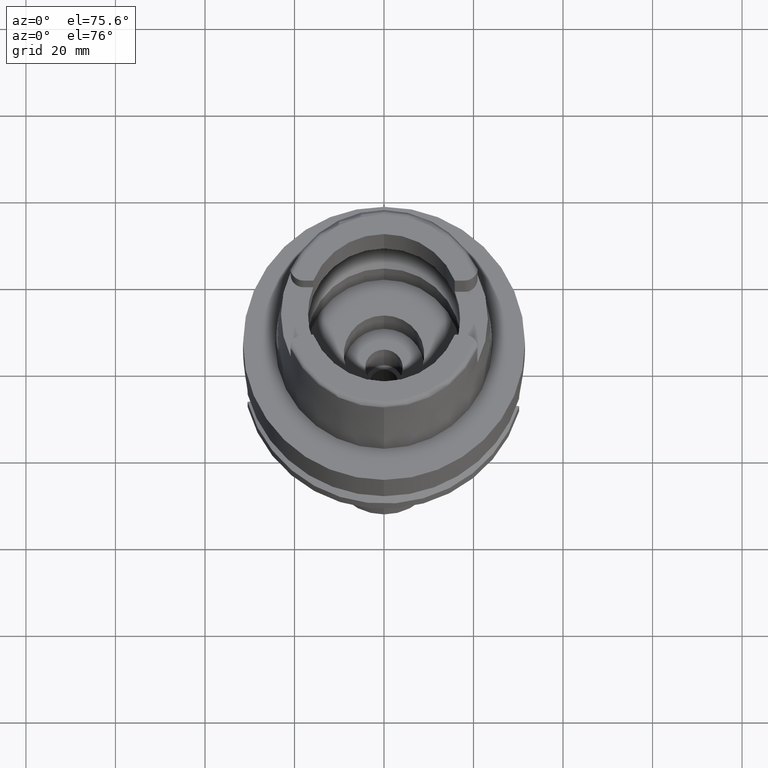
[diagram: clean part render]
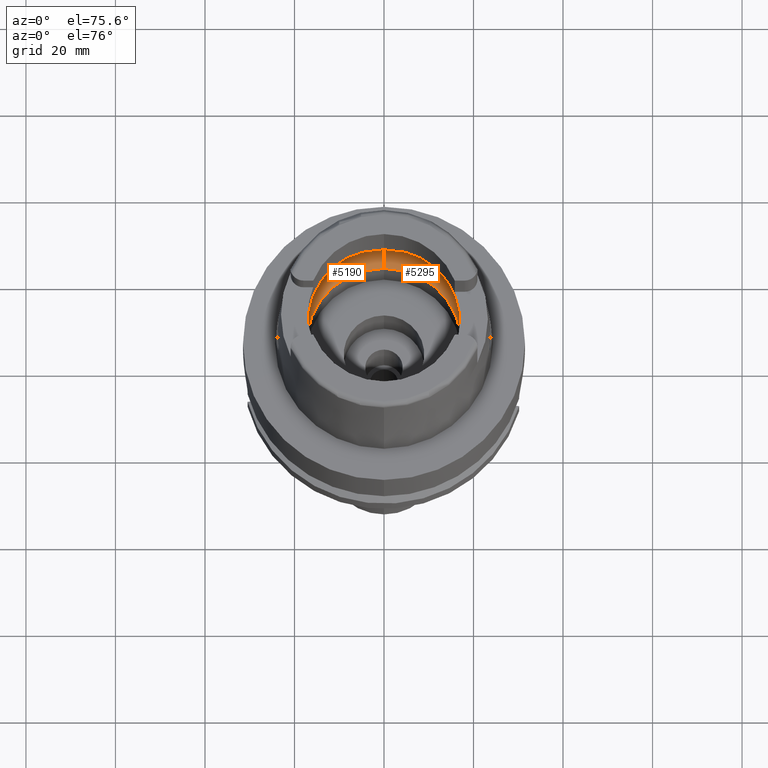
[diagram: same view with one multi-face feature highlighted, each face labeled with its STEP entity id]
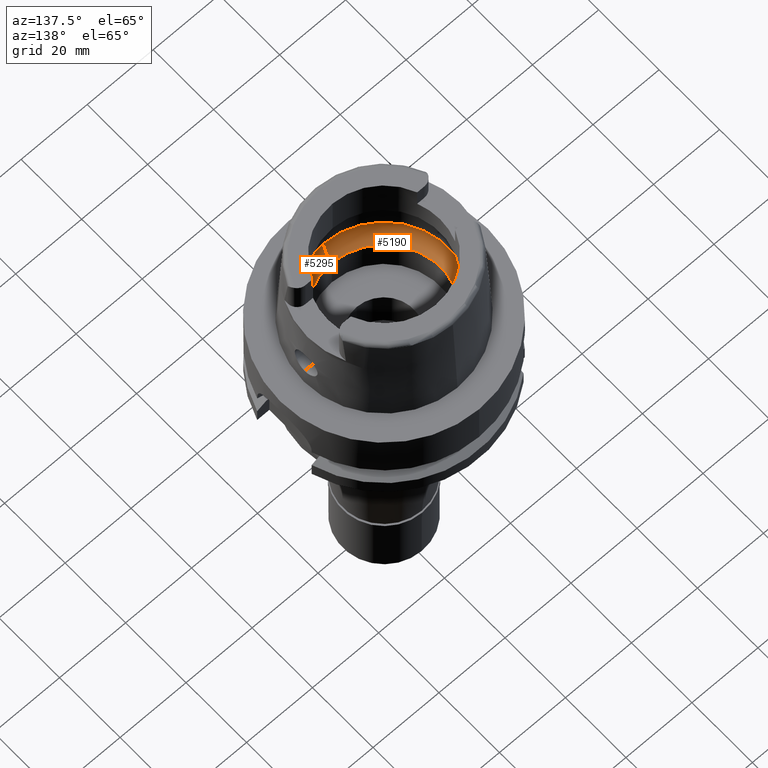
[diagram: same view with one multi-face feature highlighted, each face labeled with its STEP entity id]
A machine part, auxiliary view. The highlighted faces form ONE feature: a constant-radius fillet chain: 2 tangent blend faces with common blend radius 8 mm. The faces share edges in the B-rep.
A second angle (auxiliary view) of the same feature is appended — it is thin or edge-on in the first view.
Their STEP definitions:
[1] entity #5190 (Torus):
#51 = CARTESIAN_POINT ( 'NONE',  ( -19.90654447560747542, -1.770008974173177263, 5.691881888190377659 ) ) ;
#55 = CARTESIAN_POINT ( 'NONE',  ( -19.84575864665999845, -2.479085262491000030, 6.186348233825000875 ) ) ;
#291 = CIRCLE ( 'NONE', #2956, 20.00000000000000000 ) ;
#303 = EDGE_CURVE ( 'NONE', #380, #1386, #2528, .T. ) ;
#380 = VERTEX_POINT ( 'NONE', #2709 ) ;
#426 = CARTESIAN_POINT ( 'NONE',  ( -19.92591704426989452, 1.321751840890049490, 5.490650643677390974 ) ) ;
#444 = ORIENTED_EDGE ( 'NONE', *, *, #4138, .F. ) ;
#450 = DIRECTION ( 'NONE',  ( 0.0000000000000000000, 1.000000000000000000, 0.0000000000000000000 ) ) ;
#494 = CARTESIAN_POINT ( 'NONE',  ( -19.90056784349247820, -1.871074272730828048, 5.748194928871746434 ) ) ;
#545 = CARTESIAN_POINT ( 'NONE',  ( -19.92517785718085577, -1.343613127942956842, 5.498962406970089312 ) ) ;
#582 = CARTESIAN_POINT ( 'NONE',  ( -19.94501428475999560, -0.4960423020627297008, 5.249999999999995559 ) ) ;
#623 = AXIS2_PLACEMENT_3D ( 'NONE', #2353, #754, #726 ) ;
#720 = TOROIDAL_SURFACE ( 'NONE', #3993, 12.00000000000000000, 8.000000000000000000 ) ;
#726 = DIRECTION ( 'NONE',  ( 0.0000000000000000000, 0.6562500000000006661, -0.7545435292281016393 ) ) ;
#754 = DIRECTION ( 'NONE',  ( 1.000000000000000000, 0.0000000000000000000, 0.0000000000000000000 ) ) ;
#779 = EDGE_CURVE ( 'NONE', #4959, #1616, #1147, .T. ) ;
#869 = CARTESIAN_POINT ( 'NONE',  ( -19.90996073982917380, 1.795817278995830657, 5.670328124222732136 ) ) ;
#931 = EDGE_LOOP ( 'NONE', ( #4337, #3284, #2487, #2553, #444, #2005, #2562 ) ) ;
#1002 = CARTESIAN_POINT ( 'NONE',  ( -19.93856671042052398, -0.9459665778997381480, 5.348222674928019060 ) ) ;
#1056 = CARTESIAN_POINT ( 'NONE',  ( -19.84575864665999845, 2.479085262489999941, 6.186348233825000875 ) ) ;
#1147 = B_SPLINE_CURVE_WITH_KNOTS ( 'NONE', 3,
 ( #3103, #5208, #4761, #494, #51, #4354, #2636, #4325, #1853, #1414, #545, #1831, #1002, #582, #3540 ),
 .UNSPECIFIED., .F., .F.,
 ( 4, 2, 2, 1, 1, 1, 2, 2, 4 ),
 ( 0.0000000000000000000, 0.2500000000000051070, 0.3750000000000077716, 0.4375000000000091038, 0.4687500000000098255, 0.4843750000000101030, 0.4921875000000099920, 0.5000000000000098810, 1.000000000000000000 ),
 .UNSPECIFIED. ) ;
#1295 = CARTESIAN_POINT ( 'NONE',  ( 0.0000000000000000000, 0.0000000000000000000, 6.186348233825000875 ) ) ;
#1309 = EDGE_CURVE ( 'NONE', #3026, #4959, #291, .T. ) ;
#1315 = DIRECTION ( 'NONE',  ( -1.000000000000000000, 0.0000000000000000000, 0.0000000000000000000 ) ) ;
#1322 = CARTESIAN_POINT ( 'NONE',  ( -19.88332310116147283, 2.178371483505385786, 5.921391814315846602 ) ) ;
#1386 = VERTEX_POINT ( 'NONE', #4963 ) ;
#1414 = CARTESIAN_POINT ( 'NONE',  ( -19.92467615132159864, -1.358120919786871328, 5.504564686247708671 ) ) ;
#1616 = VERTEX_POINT ( 'NONE', #4309 ) ;
#1831 = CARTESIAN_POINT ( 'NONE',  ( -19.92547007504345302, -1.335031240339097369, 5.495683724100088874 ) ) ;
#1853 = CARTESIAN_POINT ( 'NONE',  ( -19.92391559123418787, -1.379822842001579009, 5.513022806674898746 ) ) ;
#2005 = ORIENTED_EDGE ( 'NONE', *, *, #5216, .F. ) ;
#2123 = AXIS2_PLACEMENT_3D ( 'NONE', #2994, #1315, #5069 ) ;
#2284 = CARTESIAN_POINT ( 'NONE',  ( 0.0000000000000000000, 20.00000000000000000, 6.186348233825000875 ) ) ;
#2338 = DIRECTION ( 'NONE',  ( 0.0000000000000000000, 1.000000000000000000, 0.0000000000000000000 ) ) ;
#2353 = CARTESIAN_POINT ( 'NONE',  ( 0.0000000000000000000, 12.00000000000000000, 6.186348233825000875 ) ) ;
#2487 = ORIENTED_EDGE ( 'NONE', *, *, #303, .F. ) ;
#2528 = CIRCLE ( 'NONE', #4222, 17.25000000000000000 ) ;
#2530 = CARTESIAN_POINT ( 'NONE',  ( -19.93292508344945801, 1.081630659659294169, 5.408972087979956989 ) ) ;
#2553 = ORIENTED_EDGE ( 'NONE', *, *, #3364, .T. ) ;
#2559 = CARTESIAN_POINT ( 'NONE',  ( -19.84575864665999845, 2.479085262489999941, 6.186348233825000875 ) ) ;
#2562 = ORIENTED_EDGE ( 'NONE', *, *, #779, .F. ) ;
#2587 = CARTESIAN_POINT ( 'NONE',  ( -19.94501428475999916, 0.0000000000000000000, 5.250000000000000000 ) ) ;
#2636 = CARTESIAN_POINT ( 'NONE',  ( -19.91819960699401193, -1.528790138807751164, 5.574827418276589341 ) ) ;
#2709 = CARTESIAN_POINT ( 'NONE',  ( 0.0000000000000000000, 17.25000000000000000, 0.1500000000000999700 ) ) ;
#2909 = VERTEX_POINT ( 'NONE', #1056 ) ;
#2918 = CARTESIAN_POINT ( 'NONE',  ( -19.93655184384261858, 0.9261166967963114782, 5.364558725656097593 ) ) ;
#2956 = AXIS2_PLACEMENT_3D ( 'NONE', #3161, #4843, #4429 ) ;
#2979 = CARTESIAN_POINT ( 'NONE',  ( -19.94340239125193293, 0.4850157974226460000, 5.274610163457148282 ) ) ;
#2994 = CARTESIAN_POINT ( 'NONE',  ( 0.0000000000000000000, -12.00000000000000000, 6.186348233825000875 ) ) ;
#3026 = VERTEX_POINT ( 'NONE', #4936 ) ;
#3103 = CARTESIAN_POINT ( 'NONE',  ( -19.84575864665999845, -2.479085262491000030, 6.186348233825000875 ) ) ;
#3121 = DIRECTION ( 'NONE',  ( 0.0000000000000000000, 0.0000000000000000000, 1.000000000000000000 ) ) ;
#3161 = CARTESIAN_POINT ( 'NONE',  ( 0.0000000000000000000, 0.0000000000000000000, 6.186348233825000875 ) ) ;
#3234 = CARTESIAN_POINT ( 'NONE',  ( 0.0000000000000000000, 0.0000000000000000000, 0.1500000000000999700 ) ) ;
#3284 = ORIENTED_EDGE ( 'NONE', *, *, #3585, .F. ) ;
#3313 = CARTESIAN_POINT ( 'NONE',  ( -19.93096058823649130, 1.157935579649966629, 5.432577573767241041 ) ) ;
#3364 = EDGE_CURVE ( 'NONE', #380, #5403, #4679, .T. ) ;
#3367 = DIRECTION ( 'NONE',  ( 0.0000000000000000000, 0.0000000000000000000, 1.000000000000000000 ) ) ;
#3394 = FACE_OUTER_BOUND ( 'NONE', #931, .T. ) ;
#3540 = CARTESIAN_POINT ( 'NONE',  ( -19.94501428475999916, 0.0000000000000000000, 5.250000000000000000 ) ) ;
#3585 = EDGE_CURVE ( 'NONE', #1386, #3026, #4332, .T. ) ;
#3835 = CARTESIAN_POINT ( 'NONE',  ( -19.92607296192538513, 1.317057065037986030, 5.488888788417265907 ) ) ;
#3847 = CARTESIAN_POINT ( 'NONE',  ( 0.0000000000000000000, 0.0000000000000000000, 6.186348233825000875 ) ) ;
#3993 = AXIS2_PLACEMENT_3D ( 'NONE', #1295, #3367, #450 ) ;
#4138 = EDGE_CURVE ( 'NONE', #2909, #5403, #4160, .T. ) ;
#4160 = CIRCLE ( 'NONE', #4858, 20.00000000000001421 ) ;
#4175 = CARTESIAN_POINT ( 'NONE',  ( -19.92840422587602944, 1.244362650384072122, 5.462311864171463860 ) ) ;
#4222 = AXIS2_PLACEMENT_3D ( 'NONE', #3234, #3121, #2338 ) ;
#4229 = CARTESIAN_POINT ( 'NONE',  ( -19.92705993187612989, 1.286922590644232978, 5.477696685208107930 ) ) ;
#4309 = CARTESIAN_POINT ( 'NONE',  ( -19.94501428475999916, 0.0000000000000000000, 5.250000000000000000 ) ) ;
#4325 = CARTESIAN_POINT ( 'NONE',  ( -19.92208494194046509, -1.430041077684033990, 5.533135808937241329 ) ) ;
#4332 = CIRCLE ( 'NONE', #2123, 7.999999999999992895 ) ;
#4337 = ORIENTED_EDGE ( 'NONE', *, *, #1309, .F. ) ;
#4354 = CARTESIAN_POINT ( 'NONE',  ( -19.91448525756728927, -1.610510976265786987, 5.612925495665686881 ) ) ;
#4391 = B_SPLINE_CURVE_WITH_KNOTS ( 'NONE', 3,
 ( #2587, #5018, #2979, #4656, #2918, #2530, #3313, #4175, #4229, #5111, #3835, #426, #869, #1322, #2559 ),
 .UNSPECIFIED., .F., .F.,
 ( 4, 2, 2, 1, 1, 1, 2, 2, 4 ),
 ( 0.0000000000000000000, 0.2499999999999956146, 0.3749999999999934497, 0.4374999999999923395, 0.4687499999999917288, 0.4843749999999914513, 0.4921874999999914513, 0.4999999999999915623, 1.000000000000000000 ),
 .UNSPECIFIED. ) ;
#4429 = DIRECTION ( 'NONE',  ( 0.0000000000000000000, -1.000000000000000000, 0.0000000000000000000 ) ) ;
#4641 = DIRECTION ( 'NONE',  ( -0.9922879323327794543, 0.1239542631244973381, 0.0000000000000000000 ) ) ;
#4656 = CARTESIAN_POINT ( 'NONE',  ( -19.93856671072771292, 0.8185607198028845843, 5.338678409714962214 ) ) ;
#4679 = CIRCLE ( 'NONE', #623, 7.999999999999992895 ) ;
#4761 = CARTESIAN_POINT ( 'NONE',  ( -19.88058961472209774, -2.158414018199903417, 5.925204145833316893 ) ) ;
#4843 = DIRECTION ( 'NONE',  ( 0.0000000000000000000, 0.0000000000000000000, -1.000000000000000000 ) ) ;
#4858 = AXIS2_PLACEMENT_3D ( 'NONE', #3847, #5475, #4641 ) ;
#4936 = CARTESIAN_POINT ( 'NONE',  ( 0.0000000000000000000, -20.00000000000000000, 6.186348233825000875 ) ) ;
#4959 = VERTEX_POINT ( 'NONE', #55 ) ;
#4963 = CARTESIAN_POINT ( 'NONE',  ( 0.0000000000000000000, -17.25000000000000000, 0.1500000000000999700 ) ) ;
#5018 = CARTESIAN_POINT ( 'NONE',  ( -19.94501428476000271, 0.2480002814738951344, 5.249999999999999112 ) ) ;
#5069 = DIRECTION ( 'NONE',  ( 0.0000000000000000000, -0.6562500000000006661, -0.7545435292281016393 ) ) ;
#5111 = CARTESIAN_POINT ( 'NONE',  ( -19.92646963884338263, 1.305022040076338818, 5.484397814373272340 ) ) ;
#5190 = ADVANCED_FACE ( 'NONE', ( #3394 ), #720, .F. ) ;
#5208 = CARTESIAN_POINT ( 'NONE',  ( -19.86453968564131500, -2.328737885376345407, 6.053878405347992597 ) ) ;
#5216 = EDGE_CURVE ( 'NONE', #1616, #2909, #4391, .T. ) ;
#5403 = VERTEX_POINT ( 'NONE', #2284 ) ;
#5475 = DIRECTION ( 'NONE',  ( 0.0000000000000000000, 0.0000000000000000000, -1.000000000000000000 ) ) ;
[2] entity #5295 (Torus):
#160 = CARTESIAN_POINT ( 'NONE',  ( 19.86453973035713005, 2.328737527431126608, 6.053878089965426312 ) ) ;
#246 = CARTESIAN_POINT ( 'NONE',  ( 19.93655178888372248, -0.9261198900591437466, 5.364559530321087344 ) ) ;
#329 = CARTESIAN_POINT ( 'NONE',  ( 19.84575864665999845, -2.479085262491000030, 6.186348233825000875 ) ) ;
#380 = VERTEX_POINT ( 'NONE', #2709 ) ;
#381 = DIRECTION ( 'NONE',  ( 0.0000000000000000000, 0.0000000000000000000, -1.000000000000000000 ) ) ;
#520 = CARTESIAN_POINT ( 'NONE',  ( 19.92208506923287104, 1.430037391292800830, 5.533134286468000873 ) ) ;
#567 = ORIENTED_EDGE ( 'NONE', *, *, #3364, .F. ) ;
#623 = AXIS2_PLACEMENT_3D ( 'NONE', #2353, #754, #726 ) ;
#624 = EDGE_LOOP ( 'NONE', ( #5272, #2470, #567, #3058, #1232, #1319, #4520 ) ) ;
#637 = CARTESIAN_POINT ( 'NONE',  ( 19.88332301270218849, -2.178372191595286722, 5.921392438207989883 ) ) ;
#696 = CARTESIAN_POINT ( 'NONE',  ( 19.92591691872320681, -1.321755966737424792, 5.490652197696729075 ) ) ;
#726 = DIRECTION ( 'NONE',  ( 0.0000000000000000000, 0.6562500000000006661, -0.7545435292281016393 ) ) ;
#754 = DIRECTION ( 'NONE',  ( 1.000000000000000000, 0.0000000000000000000, 0.0000000000000000000 ) ) ;
#775 = CARTESIAN_POINT ( 'NONE',  ( 0.0000000000000000000, 0.0000000000000000000, 6.186348233825000875 ) ) ;
#834 = CARTESIAN_POINT ( 'NONE',  ( 0.0000000000000000000, 0.0000000000000000000, 6.186348233825000875 ) ) ;
#901 = CARTESIAN_POINT ( 'NONE',  ( 19.84575864665999845, -2.479085262491000030, 6.186348233825000875 ) ) ;
#906 = CARTESIAN_POINT ( 'NONE',  ( 0.0000000000000000000, 0.0000000000000000000, 0.1500000000000999700 ) ) ;
#1003 = CARTESIAN_POINT ( 'NONE',  ( 19.92467627844355249, 1.358116918539703288, 5.504563131532022702 ) ) ;
#1059 = CARTESIAN_POINT ( 'NONE',  ( 19.88058969236887918, 2.158413152842832083, 5.925203484518751118 ) ) ;
#1232 = ORIENTED_EDGE ( 'NONE', *, *, #3585, .T. ) ;
#1315 = DIRECTION ( 'NONE',  ( -1.000000000000000000, 0.0000000000000000000, 0.0000000000000000000 ) ) ;
#1319 = ORIENTED_EDGE ( 'NONE', *, *, #3568, .F. ) ;
#1383 = DIRECTION ( 'NONE',  ( 0.0000000000000000000, -1.000000000000000000, 0.0000000000000000000 ) ) ;
#1386 = VERTEX_POINT ( 'NONE', #4963 ) ;
#1514 = B_SPLINE_CURVE_WITH_KNOTS ( 'NONE', 3,
 ( #4486, #4021, #4047, #3247, #246, #2404, #3215, #3627, #5404, #5375, #4896, #696, #2831, #637, #329 ),
 .UNSPECIFIED., .F., .F.,
 ( 4, 2, 2, 1, 1, 1, 2, 2, 4 ),
 ( 0.0000000000000000000, 0.2499999999999987788, 0.3749999999999982792, 0.4374999999999980571, 0.4687499999999978906, 0.4843749999999975020, 0.4921874999999975575, 0.4999999999999975575, 1.000000000000000000 ),
 .UNSPECIFIED. ) ;
#1648 = DIRECTION ( 'NONE',  ( 0.0000000000000000000, 0.0000000000000000000, 1.000000000000000000 ) ) ;
#1692 = DIRECTION ( 'NONE',  ( 0.0000000000000000000, 0.0000000000000000000, -1.000000000000000000 ) ) ;
#1734 = B_SPLINE_CURVE_WITH_KNOTS ( 'NONE', 3,
 ( #4355, #160, #1059, #1854, #3160, #4326, #3573, #520, #3517, #1003, #2743, #3075, #2273, #5238, #1832 ),
 .UNSPECIFIED., .F., .F.,
 ( 4, 2, 2, 1, 1, 1, 2, 2, 4 ),
 ( 0.0000000000000000000, 0.2500000000000098810, 0.3750000000000143774, 0.4375000000000168199, 0.4687500000000177636, 0.4843750000000178746, 0.4921875000000178191, 0.5000000000000177636, 1.000000000000000000 ),
 .UNSPECIFIED. ) ;
#1748 = DIRECTION ( 'NONE',  ( 0.9922879323327794543, -0.1239542631244973381, 0.0000000000000000000 ) ) ;
#1819 = AXIS2_PLACEMENT_3D ( 'NONE', #775, #381, #3386 ) ;
#1832 = CARTESIAN_POINT ( 'NONE',  ( 19.94501428475999916, 0.0000000000000000000, 5.250000000000000000 ) ) ;
#1854 = CARTESIAN_POINT ( 'NONE',  ( 19.90056795285840252, 1.871072381427654641, 5.748193827892907670 ) ) ;
#1960 = AXIS2_PLACEMENT_3D ( 'NONE', #5441, #1648, #3341 ) ;
#2039 = AXIS2_PLACEMENT_3D ( 'NONE', #906, #5203, #1383 ) ;
#2064 = FACE_OUTER_BOUND ( 'NONE', #624, .T. ) ;
#2123 = AXIS2_PLACEMENT_3D ( 'NONE', #2994, #1315, #5069 ) ;
#2273 = CARTESIAN_POINT ( 'NONE',  ( 19.93856675271270618, 0.9459631445367676639, 5.348221889603026469 ) ) ;
#2284 = CARTESIAN_POINT ( 'NONE',  ( 0.0000000000000000000, 20.00000000000000000, 6.186348233825000875 ) ) ;
#2353 = CARTESIAN_POINT ( 'NONE',  ( 0.0000000000000000000, 12.00000000000000000, 6.186348233825000875 ) ) ;
#2404 = CARTESIAN_POINT ( 'NONE',  ( 19.93292500493674524, -1.081634238850528451, 5.408973163817647034 ) ) ;
#2470 = ORIENTED_EDGE ( 'NONE', *, *, #2650, .F. ) ;
#2506 = EDGE_CURVE ( 'NONE', #4287, #4615, #1514, .T. ) ;
#2650 = EDGE_CURVE ( 'NONE', #5403, #3335, #4214, .T. ) ;
#2666 = CARTESIAN_POINT ( 'NONE',  ( 19.84575864665999845, 2.479085262491000030, 6.186348233825000875 ) ) ;
#2709 = CARTESIAN_POINT ( 'NONE',  ( 0.0000000000000000000, 17.25000000000000000, 0.1500000000000999700 ) ) ;
#2743 = CARTESIAN_POINT ( 'NONE',  ( 19.92517798419736508, 1.343609062691706768, 5.498960846759680443 ) ) ;
#2831 = CARTESIAN_POINT ( 'NONE',  ( 19.90996060949646207, -1.795819319521763990, 5.670329520825307057 ) ) ;
#2994 = CARTESIAN_POINT ( 'NONE',  ( 0.0000000000000000000, -12.00000000000000000, 6.186348233825000875 ) ) ;
#3026 = VERTEX_POINT ( 'NONE', #4936 ) ;
#3040 = CARTESIAN_POINT ( 'NONE',  ( 19.94501428475999916, 0.0000000000000000000, 5.250000000000000000 ) ) ;
#3058 = ORIENTED_EDGE ( 'NONE', *, *, #4310, .F. ) ;
#3075 = CARTESIAN_POINT ( 'NONE',  ( 19.92547020324161622, 1.335027099705274445, 5.495682146681705404 ) ) ;
#3160 = CARTESIAN_POINT ( 'NONE',  ( 19.90654459260023401, 1.770006697072565638, 5.691880654306289422 ) ) ;
#3215 = CARTESIAN_POINT ( 'NONE',  ( 19.93096049696546856, -1.157939335591919860, 5.432578789541300246 ) ) ;
#3247 = CARTESIAN_POINT ( 'NONE',  ( 19.93856666885426776, -0.8185636124059638696, 5.338679045133562617 ) ) ;
#3335 = VERTEX_POINT ( 'NONE', #2666 ) ;
#3341 = DIRECTION ( 'NONE',  ( 0.0000000000000000000, 1.000000000000000000, 0.0000000000000000000 ) ) ;
#3364 = EDGE_CURVE ( 'NONE', #380, #5403, #4679, .T. ) ;
#3386 = DIRECTION ( 'NONE',  ( 0.0000000000000000000, 1.000000000000000000, 0.0000000000000000000 ) ) ;
#3452 = CIRCLE ( 'NONE', #2039, 17.25000000000000000 ) ;
#3517 = CARTESIAN_POINT ( 'NONE',  ( 19.92391571847978327, 1.379818936262329210, 5.513021260670505796 ) ) ;
#3568 = EDGE_CURVE ( 'NONE', #4615, #3026, #4503, .T. ) ;
#3573 = CARTESIAN_POINT ( 'NONE',  ( 19.91819973341328875, 1.528786876979157716, 5.574825955112756581 ) ) ;
#3585 = EDGE_CURVE ( 'NONE', #1386, #3026, #4332, .T. ) ;
#3618 = AXIS2_PLACEMENT_3D ( 'NONE', #834, #1692, #1748 ) ;
#3627 = CARTESIAN_POINT ( 'NONE',  ( 19.92840411800285594, -1.244366584479167814, 5.462313247185328180 ) ) ;
#3796 = EDGE_CURVE ( 'NONE', #3335, #4287, #1734, .T. ) ;
#4021 = CARTESIAN_POINT ( 'NONE',  ( 19.94501428476000271, -0.2480012822880987844, 5.249999999999999112 ) ) ;
#4047 = CARTESIAN_POINT ( 'NONE',  ( 19.94340238078356720, -0.4850176595367738930, 5.274610361541468784 ) ) ;
#4214 = CIRCLE ( 'NONE', #1819, 20.00000000000000000 ) ;
#4287 = VERTEX_POINT ( 'NONE', #3040 ) ;
#4310 = EDGE_CURVE ( 'NONE', #1386, #380, #3452, .T. ) ;
#4326 = CARTESIAN_POINT ( 'NONE',  ( 19.91448538158095616, 1.610508053762637504, 5.612924102263966653 ) ) ;
#4332 = CIRCLE ( 'NONE', #2123, 7.999999999999992895 ) ;
#4355 = CARTESIAN_POINT ( 'NONE',  ( 19.84575864665999845, 2.479085262491000030, 6.186348233825000875 ) ) ;
#4486 = CARTESIAN_POINT ( 'NONE',  ( 19.94501428475999916, 0.0000000000000000000, 5.250000000000000000 ) ) ;
#4503 = CIRCLE ( 'NONE', #3618, 20.00000000000001421 ) ;
#4520 = ORIENTED_EDGE ( 'NONE', *, *, #2506, .F. ) ;
#4615 = VERTEX_POINT ( 'NONE', #901 ) ;
#4679 = CIRCLE ( 'NONE', #623, 7.999999999999992895 ) ;
#4896 = CARTESIAN_POINT ( 'NONE',  ( 19.92607283891191727, -1.317061137141596561, 5.488890315884850324 ) ) ;
#4936 = CARTESIAN_POINT ( 'NONE',  ( 0.0000000000000000000, -20.00000000000000000, 6.186348233825000875 ) ) ;
#4963 = CARTESIAN_POINT ( 'NONE',  ( 0.0000000000000000000, -17.25000000000000000, 0.1500000000000999700 ) ) ;
#5047 = TOROIDAL_SURFACE ( 'NONE', #1960, 12.00000000000000000, 8.000000000000000000 ) ;
#5069 = DIRECTION ( 'NONE',  ( 0.0000000000000000000, -0.6562500000000006661, -0.7545435292281016393 ) ) ;
#5203 = DIRECTION ( 'NONE',  ( 0.0000000000000000000, 0.0000000000000000000, 1.000000000000000000 ) ) ;
#5238 = CARTESIAN_POINT ( 'NONE',  ( 19.94501428475999916, 0.4960402853743813290, 5.250000000000000888 ) ) ;
#5272 = ORIENTED_EDGE ( 'NONE', *, *, #3796, .F. ) ;
#5295 = ADVANCED_FACE ( 'NONE', ( #2064 ), #5047, .F. ) ;
#5375 = CARTESIAN_POINT ( 'NONE',  ( 19.92646951840612246, -1.305026090026948804, 5.484399317726082579 ) ) ;
#5403 = VERTEX_POINT ( 'NONE', #2284 ) ;
#5404 = CARTESIAN_POINT ( 'NONE',  ( 19.92705981527248937, -1.286926606873724177, 5.477698152406411225 ) ) ;
#5441 = CARTESIAN_POINT ( 'NONE',  ( 0.0000000000000000000, 0.0000000000000000000, 6.186348233825000875 ) ) ;